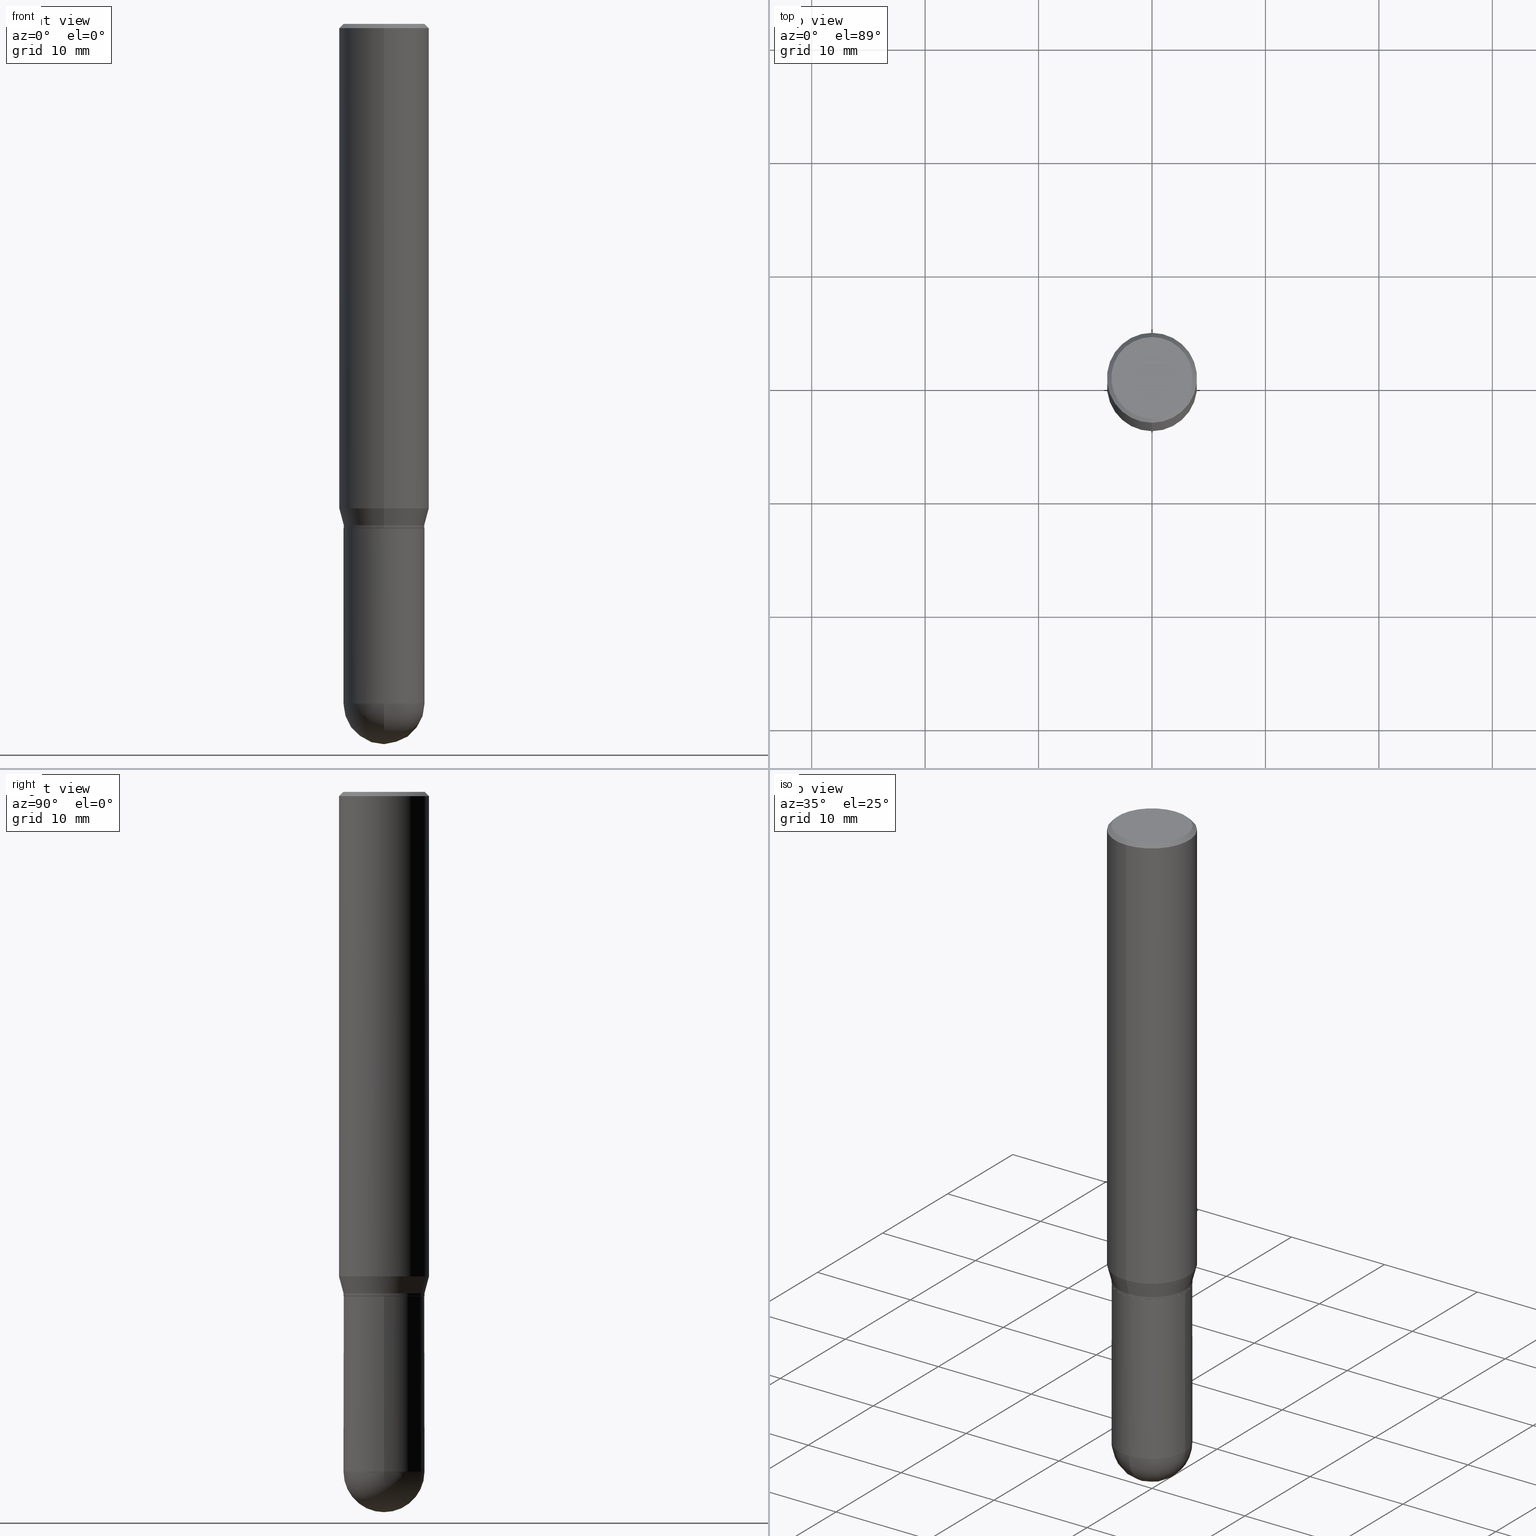
[diagram: canonical four-view strip — front | top / right | iso, engineering-drawing reading convention]
A machine part, canonical four-view strip (front | top / right | iso — engineering-drawing reading convention). The complete STEP part file that produces these views, byte-faithful:
ISO-10303-21;
HEADER;
FILE_DESCRIPTION (( 'STEP AP203' ),
    '1' );
FILE_NAME ('39536.STEP',
    '2024-03-08T12:53:07',
    ( '' ),
    ( '' ),
    'SwSTEP 2.0',
    'SolidWorks 2023',
    '' );
FILE_SCHEMA (( 'CONFIG_CONTROL_DESIGN' ));
ENDSEC;

DATA;
#1 = VERTEX_POINT ( 'NONE', #6 ) ;
#2 = ORIENTED_EDGE ( 'NONE', *, *, #305, .T. ) ;
#3 = DIRECTION ( 'NONE',  ( -2.445560966219159716E-29, 3.491349360429001039E-15, 1.000000000000000000 ) ) ;
#4 = DIRECTION ( 'NONE',  ( -4.937700262164631661E-15, -0.7071067811865571207, 0.7071067811865379138 ) ) ;
#5 = CARTESIAN_POINT ( 'NONE',  ( 4.255276081221338142E-29, -6.074947887146461556E-15, -1.739999999999999991 ) ) ;
#6 = CARTESIAN_POINT ( 'NONE',  ( -1.091087918388437956E-15, -0.1562500000000058842, -1.681593404861546404 ) ) ;
#7 = APPLICATION_PROTOCOL_DEFINITION ( 'international standard', 'config_control_design', 1994, #318 ) ;
#8 = SECURITY_CLASSIFICATION ( '', '', #125 ) ;
#9 = ORIENTED_EDGE ( 'NONE', *, *, #212, .F. ) ;
#10 = EDGE_CURVE ( 'NONE', #25, #315, #130, .T. ) ;
#11 = CYLINDRICAL_SURFACE ( 'NONE', #297, 0.1406000000000000028 ) ;
#12 = DIRECTION ( 'NONE',  ( -2.445468806185136597E-29, 3.491481338843145583E-15, 1.000000000000000000 ) ) ;
#13 = PERSON_AND_ORGANIZATION ( #472, #247 ) ;
#14 = CARTESIAN_POINT ( 'NONE',  ( 7.297477244033334279E-46, -1.041807702225884863E-31, -2.983968645572244653E-17 ) ) ;
#15 = AXIS2_PLACEMENT_3D ( 'NONE', #413, #59, #372 ) ;
#16 = CC_DESIGN_APPROVAL ( #102, ( #442 ) ) ;
#17 = APPROVAL_STATUS ( 'not_yet_approved' ) ;
#18 = DIRECTION ( 'NONE',  ( -2.445468806185136597E-29, 3.491481338843145583E-15, 1.000000000000000000 ) ) ;
#19 = CARTESIAN_POINT ( 'NONE',  ( 0.000000000000000000, 0.000000000000000000, 0.000000000000000000 ) ) ;
#20 = AXIS2_PLACEMENT_3D ( 'NONE', #14, #164, #319 ) ;
#21 = FACE_OUTER_BOUND ( 'NONE', #257, .T. ) ;
#22 = FACE_OUTER_BOUND ( 'NONE', #439, .T. ) ;
#23 = PRODUCT_RELATED_PRODUCT_CATEGORY ( 'detail', '', ( #392 ) ) ;
#24 = CARTESIAN_POINT ( 'NONE',  ( 4.112439191980971805E-29, -5.871030058564987327E-15, -1.681593404861546848 ) ) ;
#25 = VERTEX_POINT ( 'NONE', #314 ) ;
#26 = DIRECTION ( 'NONE',  ( -2.445560966219159716E-29, 3.491349360429001039E-15, 1.000000000000000000 ) ) ;
#27 = PLANE ( 'NONE',  #126 ) ;
#28 = EDGE_CURVE ( 'NONE', #315, #25, #193, .T. ) ;
#29 = DIRECTION ( 'NONE',  ( -6.982962677686265922E-15, -1.000000000000000000, 3.899854380677035588E-15 ) ) ;
#30 = VERTEX_POINT ( 'NONE', #87 ) ;
#31 = CARTESIAN_POINT ( 'NONE',  ( 4.112439191980971805E-29, -5.871030058564987327E-15, -1.681593404861546848 ) ) ;
#32 = DIRECTION ( 'NONE',  ( -2.445468806185136597E-29, 3.491481338843145583E-15, 1.000000000000000000 ) ) ;
#33 = LINE ( 'NONE', #502, #355 ) ;
#34 = DIRECTION ( 'NONE',  ( -2.445560966219159716E-29, 3.491349360429001039E-15, 1.000000000000000000 ) ) ;
#35 = AXIS2_PLACEMENT_3D ( 'NONE', #68, #388, #348 ) ;
#36 = CYLINDRICAL_SURFACE ( 'NONE', #51, 0.1405999999999999195 ) ;
#37 = ADVANCED_FACE ( 'NONE', ( #251 ), #445, .T. ) ;
#38 = ORIENTED_EDGE ( 'NONE', *, *, #385, .F. ) ;
#39 = ORIENTED_EDGE ( 'NONE', *, *, #173, .F. ) ;
#40 = FACE_OUTER_BOUND ( 'NONE', #57, .T. ) ;
#41 = DIRECTION ( 'NONE',  ( -2.445560966219159716E-29, 3.491349360429001039E-15, 1.000000000000000000 ) ) ;
#42 = CARTESIAN_POINT ( 'NONE',  ( 9.818045524827470871E-16, 0.1405999999999918426, -2.359400000000000386 ) ) ;
#43 = DATE_AND_TIME ( #122, #277 ) ;
#44 = CARTESIAN_POINT ( 'NONE',  ( 0.1406000000000000583, -8.155751259403701439E-15, -2.359399999999999942 ) ) ;
#45 = CLOSED_SHELL ( 'NONE', ( #267, #322, #424, #398, #370, #359, #37, #256, #491, #246, #466, #182 ) ) ;
#46 = ADVANCED_FACE ( 'NONE', ( #208 ), #396, .T. ) ;
#47 = CARTESIAN_POINT ( 'NONE',  ( 0.000000000000000000, 0.000000000000000000, 0.000000000000000000 ) ) ;
#48 = PERSON_AND_ORGANIZATION_ROLE ( 'design_supplier' ) ;
#49 = DIRECTION ( 'NONE',  ( -2.445560966219159996E-29, 3.491349360429000645E-15, 1.000000000000000000 ) ) ;
#50 = APPROVAL_STATUS ( 'not_yet_approved' ) ;
#51 = AXIS2_PLACEMENT_3D ( 'NONE', #149, #3, #469 ) ;
#52 = APPROVAL_PERSON_ORGANIZATION ( #443, #339, #200 ) ;
#53 = ADVANCED_FACE ( 'NONE', ( #286 ), #11, .T. ) ;
#54 = EDGE_CURVE ( 'NONE', #427, #507, #324, .T. ) ;
#55 = AXIS2_PLACEMENT_3D ( 'NONE', #281, #121, #241 ) ;
#56 = CIRCLE ( 'NONE', #174, 0.1562500000000000000 ) ;
#57 = EDGE_LOOP ( 'NONE', ( #473, #356 ) ) ;
#58 = VERTEX_POINT ( 'NONE', #451 ) ;
#59 = DIRECTION ( 'NONE',  ( 2.445560966219159716E-29, -3.491349360429001039E-15, -1.000000000000000000 ) ) ;
#60 = VERTEX_POINT ( 'NONE', #284 ) ;
#61 = CIRCLE ( 'NONE', #452, 0.1562500000000000000 ) ;
#62 = ORIENTED_EDGE ( 'NONE', *, *, #88, .F. ) ;
#63 = ORIENTED_EDGE ( 'NONE', *, *, #285, .F. ) ;
#64 =( NAMED_UNIT ( * ) PLANE_ANGLE_UNIT ( ) SI_UNIT ( $, .RADIAN. ) );
#65 = CARTESIAN_POINT ( 'NONE',  ( 4.279570410823989044E-29, -6.110092342975505460E-15, -1.750000000000000222 ) ) ;
#66 = ORIENTED_EDGE ( 'NONE', *, *, #127, .T. ) ;
#67 = CARTESIAN_POINT ( 'NONE',  ( -0.1406000000000000028, 9.990230864787008809E-16, -6.916022736898399140E-30 ) ) ;
#68 = CARTESIAN_POINT ( 'NONE',  ( 5.769839101313211634E-29, -8.237801070866517629E-15, -2.359399999999999942 ) ) ;
#69 = VERTEX_POINT ( 'NONE', #249 ) ;
#70 = LINE ( 'NONE', #67, #464 ) ;
#71 = CYLINDRICAL_SURFACE ( 'NONE', #258, 0.1405999999999999195 ) ;
#72 = DIRECTION ( 'NONE',  ( -1.000000000000000000, 6.982962677686265922E-15, -4.883557194083112340E-29 ) ) ;
#73 = ORIENTED_EDGE ( 'NONE', *, *, #328, .T. ) ;
#74 = AXIS2_PLACEMENT_3D ( 'NONE', #217, #367, #223 ) ;
#75 = DIRECTION ( 'NONE',  ( -2.445468806185136597E-29, 3.491481338843145583E-15, 1.000000000000000000 ) ) ;
#76 = AXIS2_PLACEMENT_3D ( 'NONE', #353, #171, #108 ) ;
#77 = CARTESIAN_POINT ( 'NONE',  ( 3.668341449328747176E-31, -5.237024040643512307E-17, -0.01500000000000003067 ) ) ;
#78 = DIRECTION ( 'NONE',  ( -1.000000000000000000, 6.982962677686265922E-15, -4.876176775795935793E-29 ) ) ;
#79 = ORIENTED_EDGE ( 'NONE', *, *, #448, .F. ) ;
#80 = DIRECTION ( 'NONE',  ( -2.445560966219159716E-29, 3.491349360429001039E-15, 1.000000000000000000 ) ) ;
#81 = FACE_OUTER_BOUND ( 'NONE', #136, .T. ) ;
#82 = CARTESIAN_POINT ( 'NONE',  ( 4.278508910400420923E-29, -6.108115706070538213E-15, -1.749500000000000277 ) ) ;
#83 = COORDINATED_UNIVERSAL_TIME_OFFSET ( 5, 0, .BEHIND. ) ;
#84 = EDGE_CURVE ( 'NONE', #30, #427, #495, .T. ) ;
#85 = APPROVAL_STATUS ( 'not_yet_approved' ) ;
#86 = CARTESIAN_POINT ( 'NONE',  ( 4.255276081221338142E-29, -6.074947887146461556E-15, -1.739999999999999991 ) ) ;
#87 = CARTESIAN_POINT ( 'NONE',  ( -9.818045524826459157E-16, -0.1406000000000059980, -1.739999999999999547 ) ) ;
#88 = EDGE_CURVE ( 'NONE', #423, #222, #377, .T. ) ;
#89 = DIRECTION ( 'NONE',  ( -2.445560966219159716E-29, 3.491349360429001039E-15, 1.000000000000000000 ) ) ;
#90 = AXIS2_PLACEMENT_3D ( 'NONE', #434, #75, #312 ) ;
#91 = CC_DESIGN_PERSON_AND_ORGANIZATION_ASSIGNMENT ( #168, #394, ( #134 ) ) ;
#92 = VECTOR ( 'NONE', #346, 39.37007874015748143 ) ;
#93 = EDGE_CURVE ( 'NONE', #58, #315, #255, .T. ) ;
#94 = DIMENSIONAL_EXPONENTS ( 1.000000000000000000, 0.000000000000000000, 0.000000000000000000, 0.000000000000000000, 0.000000000000000000, 0.000000000000000000, 0.000000000000000000 ) ;
#95 = EDGE_LOOP ( 'NONE', ( #345, #334, #500, #184 ) ) ;
#96 = DIRECTION ( 'NONE',  ( -6.982962677686265922E-15, -1.000000000000000000, 3.491349360429000645E-15 ) ) ;
#97 = CIRCLE ( 'NONE', #432, 0.1406000000000000305 ) ;
#98 = VERTEX_POINT ( 'NONE', #280 ) ;
#99 = DIRECTION ( 'NONE',  ( -6.982962677686265922E-15, -1.000000000000000000, 3.899854380677035588E-15 ) ) ;
#100 = ORIENTED_EDGE ( 'NONE', *, *, #374, .F. ) ;
#101 =( CONVERSION_BASED_UNIT ( 'INCH', #308 ) LENGTH_UNIT ( ) NAMED_UNIT ( #94 ) );
#102 = APPROVAL ( #85, 'UNSPECIFIED' ) ;
#103 = DIRECTION ( 'NONE',  ( 1.000000000000000000, -6.982962677686265922E-15, 4.883557194083112340E-29 ) ) ;
#104 = VECTOR ( 'NONE', #292, 39.37007874015748143 ) ;
#105 =( GEOMETRIC_REPRESENTATION_CONTEXT ( 3 ) GLOBAL_UNCERTAINTY_ASSIGNED_CONTEXT ( ( #296 ) ) GLOBAL_UNIT_ASSIGNED_CONTEXT ( ( #101, #64, #147 ) ) REPRESENTATION_CONTEXT ( 'NONE', 'WORKASPACE' ) );
#106 = ORIENTED_EDGE ( 'NONE', *, *, #411, .F. ) ;
#107 = LINE ( 'NONE', #150, #92 ) ;
#108 = DIRECTION ( 'NONE',  ( -7.105427357601001859E-15, -1.000000000000000000, 0.000000000000000000 ) ) ;
#109 = DIRECTION ( 'NONE',  ( -2.445560966219159716E-29, 3.491349360429001039E-15, 1.000000000000000000 ) ) ;
#110 = DIRECTION ( 'NONE',  ( -6.982962677686266711E-15, -1.000000000000000000, 3.885985766236507752E-15 ) ) ;
#111 = DIRECTION ( 'NONE',  ( -2.445560966219159716E-29, 3.491349360429001039E-15, 1.000000000000000000 ) ) ;
#112 = MECHANICAL_CONTEXT ( 'NONE', #188, 'mechanical' ) ;
#113 = CC_DESIGN_PERSON_AND_ORGANIZATION_ASSIGNMENT ( #244, #484, ( #442 ) ) ;
#114 = DIRECTION ( 'NONE',  ( -2.445560966219159716E-29, 3.491349360429001039E-15, 1.000000000000000000 ) ) ;
#115 = EDGE_LOOP ( 'NONE', ( #100, #302, #73, #237 ) ) ;
#116 = CIRCLE ( 'NONE', #384, 0.1401000000000000023 ) ;
#117 = ORIENTED_EDGE ( 'NONE', *, *, #414, .F. ) ;
#118 = AXIS2_PLACEMENT_3D ( 'NONE', #471, #354, #110 ) ;
#119 = DIRECTION ( 'NONE',  ( -2.445560966219159716E-29, 3.491349360429001039E-15, 1.000000000000000000 ) ) ;
#120 = APPROVAL_ROLE ( '' ) ;
#121 = DIRECTION ( 'NONE',  ( -2.445560966219159716E-29, 3.491349360429001039E-15, 1.000000000000000000 ) ) ;
#122 = CALENDAR_DATE ( 2024, 8, 3 ) ;
#123 = ORIENTED_EDGE ( 'NONE', *, *, #54, .F. ) ;
#124 = DIRECTION ( 'NONE',  ( 1.000000000000000000, -6.982962677686268288E-15, 4.876176775795936353E-29 ) ) ;
#125 = SECURITY_CLASSIFICATION_LEVEL ( 'unclassified' ) ;
#126 = AXIS2_PLACEMENT_3D ( 'NONE', #233, #238, #195 ) ;
#127 = EDGE_CURVE ( 'NONE', #197, #58, #116, .T. ) ;
#128 = PERSON_AND_ORGANIZATION_ROLE ( 'design_owner' ) ;
#129 = ORIENTED_EDGE ( 'NONE', *, *, #422, .T. ) ;
#130 = CIRCLE ( 'NONE', #362, 0.1405999999999999195 ) ;
#131 = PLANE ( 'NONE',  #485 ) ;
#132 = ORIENTED_EDGE ( 'NONE', *, *, #10, .F. ) ;
#133 = CIRCLE ( 'NONE', #226, 0.1562500000000000000 ) ;
#134 = PRODUCT_DEFINITION_FORMATION_WITH_SPECIFIED_SOURCE ( 'ANY', '', #392, .NOT_KNOWN. ) ;
#135 = DIRECTION ( 'NONE',  ( -2.445560966219159716E-29, 3.491349360429001039E-15, 1.000000000000000000 ) ) ;
#136 = EDGE_LOOP ( 'NONE', ( #227, #337, #336, #39 ) ) ;
#137 = CC_DESIGN_PERSON_AND_ORGANIZATION_ASSIGNMENT ( #13, #48, ( #134 ) ) ;
#138 = CARTESIAN_POINT ( 'NONE',  ( 4.279731690883529924E-29, -6.109861380750751819E-15, -1.750000000000000222 ) ) ;
#139 = ORIENTED_EDGE ( 'NONE', *, *, #316, .F. ) ;
#140 = CARTESIAN_POINT ( 'NONE',  ( 3.668341449328747176E-31, -5.237024040643512307E-17, -0.01500000000000003067 ) ) ;
#141 = ADVANCED_FACE ( 'NONE', ( #436 ), #266, .F. ) ;
#142 = ORIENTED_EDGE ( 'NONE', *, *, #385, .T. ) ;
#143 = FACE_OUTER_BOUND ( 'NONE', #418, .T. ) ;
#144 = CIRCLE ( 'NONE', #368, 0.1405999999999999195 ) ;
#145 = AXIS2_PLACEMENT_3D ( 'NONE', #383, #190, #270 ) ;
#146 = ORIENTED_EDGE ( 'NONE', *, *, #333, .F. ) ;
#147 =( NAMED_UNIT ( * ) SI_UNIT ( $, .STERADIAN. ) SOLID_ANGLE_UNIT ( ) );
#148 = VERTEX_POINT ( 'NONE', #205 ) ;
#149 = CARTESIAN_POINT ( 'NONE',  ( 0.000000000000000000, 0.000000000000000000, 0.000000000000000000 ) ) ;
#150 = CARTESIAN_POINT ( 'NONE',  ( 9.990230864787002893E-16, 0.1405999999999999195, -4.908837200763172852E-16 ) ) ;
#151 =( LENGTH_UNIT ( ) NAMED_UNIT ( * ) SI_UNIT ( $, .METRE. ) );
#152 = ADVANCED_BREP_SHAPE_REPRESENTATION ( '39536', ( #476, #299, #145 ), #105 ) ;
#153 = DIRECTION ( 'NONE',  ( -6.982962677686266711E-15, -1.000000000000000000, 3.491349360429001039E-15 ) ) ;
#154 = VECTOR ( 'NONE', #426, 39.37007874015748143 ) ;
#155 = CALENDAR_DATE ( 2024, 8, 3 ) ;
#156 = FACE_OUTER_BOUND ( 'NONE', #206, .T. ) ;
#157 = LINE ( 'NONE', #493, #508 ) ;
#158 = DIRECTION ( 'NONE',  ( -2.445560966219159716E-29, 3.491349360429001039E-15, 1.000000000000000000 ) ) ;
#159 = APPROVAL_DATE_TIME ( #288, #339 ) ;
#160 = DIRECTION ( 'NONE',  ( -6.982962677686265133E-15, -1.000000000000000000, 3.491349360429001039E-15 ) ) ;
#161 = DIRECTION ( 'NONE',  ( -2.445560966219159716E-29, 3.491349360429001039E-15, 1.000000000000000000 ) ) ;
#162 = DIRECTION ( 'NONE',  ( -2.445468806185136877E-29, 3.491481338843145188E-15, 1.000000000000000000 ) ) ;
#163 = DATE_AND_TIME ( #155, #490 ) ;
#164 = DIRECTION ( 'NONE',  ( -2.445560966219159716E-29, 3.491349360429001039E-15, 1.000000000000000000 ) ) ;
#165 = ORIENTED_EDGE ( 'NONE', *, *, #93, .T. ) ;
#166 = AXIS2_PLACEMENT_3D ( 'NONE', #326, #250, #160 ) ;
#167 = EDGE_CURVE ( 'NONE', #404, #187, #463, .T. ) ;
#168 = PERSON_AND_ORGANIZATION ( #472, #247 ) ;
#169 = DIRECTION ( 'NONE',  ( 1.000000000000000000, -6.982962677686268288E-15, 4.876176775795936353E-29 ) ) ;
#170 = CYLINDRICAL_SURFACE ( 'NONE', #166, 0.1562500000000000000 ) ;
#171 = DIRECTION ( 'NONE',  ( -1.000000000000000000, 7.105427357601001070E-15, -4.926315508542082329E-29 ) ) ;
#172 = CARTESIAN_POINT ( 'NONE',  ( 9.990230864787428877E-16, 0.1405999999999938410, -1.740000000000000657 ) ) ;
#173 = EDGE_CURVE ( 'NONE', #427, #30, #144, .T. ) ;
#174 = AXIS2_PLACEMENT_3D ( 'NONE', #512, #350, #231 ) ;
#175 = ORIENTED_EDGE ( 'NONE', *, *, #422, .F. ) ;
#176 = CC_DESIGN_DATE_AND_TIME_ASSIGNMENT ( #163, #242, ( #442 ) ) ;
#177 = EDGE_CURVE ( 'NONE', #222, #311, #391, .T. ) ;
#178 = ORIENTED_EDGE ( 'NONE', *, *, #305, .F. ) ;
#179 = CARTESIAN_POINT ( 'NONE',  ( 4.279731690883529924E-29, -6.109861380750751819E-15, -1.750000000000000222 ) ) ;
#180 = AXIS2_PLACEMENT_3D ( 'NONE', #65, #229, #340 ) ;
#181 = VECTOR ( 'NONE', #300, 39.37007874015748143 ) ;
#182 = ADVANCED_FACE ( 'NONE', ( #81 ), #71, .T. ) ;
#183 = ORIENTED_EDGE ( 'NONE', *, *, #28, .F. ) ;
#184 = ORIENTED_EDGE ( 'NONE', *, *, #328, .F. ) ;
#185 = ORIENTED_EDGE ( 'NONE', *, *, #454, .T. ) ;
#186 = LINE ( 'NONE', #378, #181 ) ;
#187 = VERTEX_POINT ( 'NONE', #44 ) ;
#188 = APPLICATION_CONTEXT ( 'configuration controlled 3d designs of mechanical parts and assemblies' ) ;
#189 = ORIENTED_EDGE ( 'NONE', *, *, #173, .T. ) ;
#190 = DIRECTION ( 'NONE',  ( 0.000000000000000000, 0.000000000000000000, 1.000000000000000000 ) ) ;
#191 = CARTESIAN_POINT ( 'NONE',  ( 5.769839101313211634E-29, -8.237801070866517629E-15, -2.359399999999999942 ) ) ;
#192 = DIRECTION ( 'NONE',  ( -6.982962677686265922E-15, -1.000000000000000000, 3.899854380677035588E-15 ) ) ;
#193 = CIRCLE ( 'NONE', #55, 0.1405999999999999195 ) ;
#194 = CIRCLE ( 'NONE', #298, 0.1412499999999999867 ) ;
#195 = DIRECTION ( 'NONE',  ( 6.982962677686265922E-15, 1.000000000000000000, -3.491349360429000645E-15 ) ) ;
#196 = ORIENTED_EDGE ( 'NONE', *, *, #408, .F. ) ;
#197 = VERTEX_POINT ( 'NONE', #201 ) ;
#198 = LINE ( 'NONE', #307, #379 ) ;
#199 = CARTESIAN_POINT ( 'NONE',  ( 1.091087918388479371E-15, 0.1562499999999999445, -0.01500000000000057711 ) ) ;
#200 = APPROVAL_ROLE ( '' ) ;
#201 = CARTESIAN_POINT ( 'NONE',  ( -9.783130711438031058E-16, -0.1401000000000061085, -1.749999999999999556 ) ) ;
#202 = CARTESIAN_POINT ( 'NONE',  ( -9.990230864786434913E-16, -0.1406000000000083017, -2.359399999999999498 ) ) ;
#203 = AXIS2_PLACEMENT_3D ( 'NONE', #465, #34, #192 ) ;
#204 = ADVANCED_FACE ( 'NONE', ( #156 ), #232, .T. ) ;
#205 = CARTESIAN_POINT ( 'NONE',  ( 6.107660196449910766E-29, -8.737312614105869844E-15, -2.500000000000000000 ) ) ;
#206 = EDGE_LOOP ( 'NONE', ( #196, #504, #428, #468 ) ) ;
#207 = PERSON_AND_ORGANIZATION ( #472, #247 ) ;
#208 = FACE_OUTER_BOUND ( 'NONE', #329, .T. ) ;
#209 = CARTESIAN_POINT ( 'NONE',  ( 9.990230864787432822E-16, 0.1405999999999938410, -1.749500000000000721 ) ) ;
#210 = CARTESIAN_POINT ( 'NONE',  ( -1.091087918388478976E-15, -0.1562500000000000000, 5.455233375670314124E-16 ) ) ;
#211 = DATE_AND_TIME ( #358, #294 ) ;
#212 = EDGE_CURVE ( 'NONE', #268, #69, #276, .T. ) ;
#213 = PERSON_AND_ORGANIZATION ( #472, #247 ) ;
#214 = APPROVAL_PERSON_ORGANIZATION ( #323, #261, #120 ) ;
#215 = FACE_OUTER_BOUND ( 'NONE', #95, .T. ) ;
#216 = ORIENTED_EDGE ( 'NONE', *, *, #167, .T. ) ;
#217 = CARTESIAN_POINT ( 'NONE',  ( 5.757815463287349061E-29, -8.255019604862529009E-15, -2.359399999999999942 ) ) ;
#218 = EDGE_LOOP ( 'NONE', ( #461, #488, #63, #263 ) ) ;
#219 = CC_DESIGN_PERSON_AND_ORGANIZATION_ASSIGNMENT ( #213, #128, ( #392 ) ) ;
#220 = CONICAL_SURFACE ( 'NONE', #15, 0.1562500000000000000, 0.7853981633974485010 ) ;
#221 = CIRCLE ( 'NONE', #369, 0.1401000000000000023 ) ;
#222 = VERTEX_POINT ( 'NONE', #470 ) ;
#223 = DIRECTION ( 'NONE',  ( 6.982962677686265922E-15, 1.000000000000000000, -3.885985766236502230E-15 ) ) ;
#224 = DIRECTION ( 'NONE',  ( -2.445560966219159996E-29, 3.491349360429000645E-15, 1.000000000000000000 ) ) ;
#225 = DIRECTION ( 'NONE',  ( -2.445468806185136597E-29, 3.491481338843145583E-15, 1.000000000000000000 ) ) ;
#226 = AXIS2_PLACEMENT_3D ( 'NONE', #31, #111, #269 ) ;
#227 = ORIENTED_EDGE ( 'NONE', *, *, #460, .F. ) ;
#228 = DIRECTION ( 'NONE',  ( 6.982962677686265133E-15, 1.000000000000000000, -3.496765431890256920E-15 ) ) ;
#229 = DIRECTION ( 'NONE',  ( -2.445468806185136597E-29, 3.491481338843145583E-15, 1.000000000000000000 ) ) ;
#230 = ORIENTED_EDGE ( 'NONE', *, *, #505, .F. ) ;
#231 = DIRECTION ( 'NONE',  ( -6.982962677686265133E-15, -1.000000000000000000, 3.496765431890256920E-15 ) ) ;
#232 = SPHERICAL_SURFACE ( 'NONE', #410, 0.1406000000000000860 ) ;
#233 = CARTESIAN_POINT ( 'NONE',  ( 9.863434782231850151E-16, 0.1412499999999999867, -5.080729403884576451E-16 ) ) ;
#234 = DIRECTION ( 'NONE',  ( 6.982962677686265922E-15, 1.000000000000000000, -3.885985766236502230E-15 ) ) ;
#235 = AXIS2_PLACEMENT_3D ( 'NONE', #191, #343, #506 ) ;
#236 = AXIS2_PLACEMENT_3D ( 'NONE', #138, #80, #29 ) ;
#237 = ORIENTED_EDGE ( 'NONE', *, *, #454, .F. ) ;
#238 = DIRECTION ( 'NONE',  ( 2.445560966219159716E-29, -3.491349360429000645E-15, -1.000000000000000000 ) ) ;
#239 = ORIENTED_EDGE ( 'NONE', *, *, #177, .T. ) ;
#240 = ADVANCED_FACE ( 'NONE', ( #275 ), #405, .T. ) ;
#241 = DIRECTION ( 'NONE',  ( -6.982962677686265133E-15, -1.000000000000000000, 3.885985766236507752E-15 ) ) ;
#242 = DATE_TIME_ROLE ( 'creation_date' ) ;
#243 = CARTESIAN_POINT ( 'NONE',  ( 4.279731690883529924E-29, -6.109861380750751819E-15, -1.750000000000000222 ) ) ;
#244 = PERSON_AND_ORGANIZATION ( #472, #247 ) ;
#245 = CONICAL_SURFACE ( 'NONE', #203, 0.1401000000000000023, 0.7853981633974653764 ) ;
#246 = ADVANCED_FACE ( 'NONE', ( #21 ), #131, .F. ) ;
#247 = ORGANIZATION ( 'UNSPECIFIED', 'UNSPECIFIED', '' ) ;
#248 = CALENDAR_DATE ( 2024, 8, 3 ) ;
#249 = CARTESIAN_POINT ( 'NONE',  ( -0.1406000000000000583, -6.174923620442310269E-15, -2.359399999999999942 ) ) ;
#250 = DIRECTION ( 'NONE',  ( -2.445560966219159716E-29, 3.491349360429001039E-15, 1.000000000000000000 ) ) ;
#251 = FACE_OUTER_BOUND ( 'NONE', #115, .T. ) ;
#252 = CARTESIAN_POINT ( 'NONE',  ( 0.1406000000000000028, -9.818045524826893030E-16, 6.855904546769086274E-30 ) ) ;
#253 = EDGE_LOOP ( 'NONE', ( #494, #272, #306, #146 ) ) ;
#254 = VECTOR ( 'NONE', #402, 39.37007874015748143 ) ;
#255 = LINE ( 'NONE', #304, #301 ) ;
#256 = ADVANCED_FACE ( 'NONE', ( #325 ), #220, .T. ) ;
#257 = EDGE_LOOP ( 'NONE', ( #375, #38 ) ) ;
#258 = AXIS2_PLACEMENT_3D ( 'NONE', #386, #347, #153 ) ;
#259 = CIRCLE ( 'NONE', #310, 0.1562500000000000000 ) ;
#260 = ORIENTED_EDGE ( 'NONE', *, *, #320, .T. ) ;
#261 = APPROVAL ( #17, 'UNSPECIFIED' ) ;
#262 = ORIENTED_EDGE ( 'NONE', *, *, #487, .T. ) ;
#263 = ORIENTED_EDGE ( 'NONE', *, *, #487, .F. ) ;
#264 = DIRECTION ( 'NONE',  ( 6.982962677686266711E-15, 1.000000000000000000, 0.000000000000000000 ) ) ;
#265 = EDGE_CURVE ( 'NONE', #507, #1, #61, .T. ) ;
#266 = PLANE ( 'NONE',  #309 ) ;
#267 = ADVANCED_FACE ( 'NONE', ( #338 ), #36, .T. ) ;
#268 = VERTEX_POINT ( 'NONE', #42 ) ;
#269 = DIRECTION ( 'NONE',  ( -6.982962677686265133E-15, -1.000000000000000000, 3.496765431890256920E-15 ) ) ;
#270 = DIRECTION ( 'NONE',  ( 1.000000000000000000, 0.000000000000000000, 0.000000000000000000 ) ) ;
#271 = CARTESIAN_POINT ( 'NONE',  ( 5.757815463287349061E-29, -8.255019604862529009E-15, -2.359399999999999942 ) ) ;
#272 = ORIENTED_EDGE ( 'NONE', *, *, #460, .T. ) ;
#273 = FACE_OUTER_BOUND ( 'NONE', #459, .T. ) ;
#274 = EDGE_CURVE ( 'NONE', #187, #268, #287, .T. ) ;
#275 = FACE_OUTER_BOUND ( 'NONE', #498, .T. ) ;
#276 = CIRCLE ( 'NONE', #35, 0.1406000000000000305 ) ;
#277 = LOCAL_TIME ( 7, 53, 7.000000000000000000, #361 ) ;
#278 = ORIENTED_EDGE ( 'NONE', *, *, #212, .T. ) ;
#279 = CARTESIAN_POINT ( 'NONE',  ( 1.110223024625197561E-15, 0.1562499999999941436, -1.681593404861547514 ) ) ;
#280 = CARTESIAN_POINT ( 'NONE',  ( -1.091087918388478779E-15, -0.1562500000000000833, -0.01499999999999948423 ) ) ;
#281 = CARTESIAN_POINT ( 'NONE',  ( 4.278508910400420923E-29, -6.108115706070538213E-15, -1.749500000000000277 ) ) ;
#282 = PERSON_AND_ORGANIZATION_ROLE ( 'classification_officer' ) ;
#283 = DIRECTION ( 'NONE',  ( -6.982962677686265922E-15, -1.000000000000000000, 3.899854380677035588E-15 ) ) ;
#284 = CARTESIAN_POINT ( 'NONE',  ( -0.1406000000000000028, -6.174923620442310269E-15, -1.750000000000000222 ) ) ;
#285 = EDGE_CURVE ( 'NONE', #1, #507, #133, .T. ) ;
#286 = FACE_OUTER_BOUND ( 'NONE', #399, .T. ) ;
#287 = CIRCLE ( 'NONE', #90, 0.1406000000000000305 ) ;
#288 = DATE_AND_TIME ( #248, #332 ) ;
#289 = LINE ( 'NONE', #210, #293 ) ;
#290 = LINE ( 'NONE', #449, #254 ) ;
#291 = APPROVAL_DATE_TIME ( #211, #102 ) ;
#292 = DIRECTION ( 'NONE',  ( 1.839019923739597160E-15, 0.2588190451025245142, 0.9659258262890673130 ) ) ;
#293 = VECTOR ( 'NONE', #49, 39.37007874015748143 ) ;
#294 = LOCAL_TIME ( 7, 53, 7.000000000000000000, #365 ) ;
#295 = CARTESIAN_POINT ( 'NONE',  ( 4.279731690883529924E-29, -6.109861380750751819E-15, -1.750000000000000222 ) ) ;
#296 = UNCERTAINTY_MEASURE_WITH_UNIT (LENGTH_MEASURE( 1.000000000000000082E-05 ), #101, 'distance_accuracy_value', 'NONE');
#297 = AXIS2_PLACEMENT_3D ( 'NONE', #19, #18, #169 ) ;
#298 = AXIS2_PLACEMENT_3D ( 'NONE', #456, #119, #438 ) ;
#299 = MANIFOLD_SOLID_BREP ( 'Body-Move/Copy2[2]', #45 ) ;
#300 = DIRECTION ( 'NONE',  ( -1.807323732225326984E-15, -0.2588190451025177419, 0.9659258262890690894 ) ) ;
#301 = VECTOR ( 'NONE', #474, 39.37007874015748143 ) ;
#302 = ORIENTED_EDGE ( 'NONE', *, *, #265, .T. ) ;
#303 = CC_DESIGN_APPROVAL ( #261, ( #134 ) ) ;
#304 = CARTESIAN_POINT ( 'NONE',  ( 9.954703727999429753E-16, 0.1400999999999938961, -1.750000000000000666 ) ) ;
#305 = EDGE_CURVE ( 'NONE', #187, #349, #363, .T. ) ;
#306 = ORIENTED_EDGE ( 'NONE', *, *, #84, .F. ) ;
#307 = CARTESIAN_POINT ( 'NONE',  ( -9.783130711438031058E-16, -0.1401000000000061085, -1.749999999999999556 ) ) ;
#308 = LENGTH_MEASURE_WITH_UNIT ( LENGTH_MEASURE( 0.02539999999999999897 ), #151 );
#309 = AXIS2_PLACEMENT_3D ( 'NONE', #389, #441, #78 ) ;
#310 = AXIS2_PLACEMENT_3D ( 'NONE', #77, #114, #421 ) ;
#311 = VERTEX_POINT ( 'NONE', #397 ) ;
#312 = DIRECTION ( 'NONE',  ( 1.000000000000000000, -6.982962677686270655E-15, 0.000000000000000000 ) ) ;
#313 = APPROVAL_DATE_TIME ( #482, #261 ) ;
#314 = CARTESIAN_POINT ( 'NONE',  ( -9.818045524826451268E-16, -0.1406000000000059702, -1.749499999999999833 ) ) ;
#315 = VERTEX_POINT ( 'NONE', #209 ) ;
#316 = EDGE_CURVE ( 'NONE', #148, #268, #393, .T. ) ;
#317 = DIRECTION ( 'NONE',  ( -6.982962677686265133E-15, -1.000000000000000000, 3.491349360429001039E-15 ) ) ;
#318 = APPLICATION_CONTEXT ( 'configuration controlled 3d designs of mechanical parts and assemblies' ) ;
#319 = DIRECTION ( 'NONE',  ( -6.982962677686265922E-15, -1.000000000000000000, 3.491349360429000645E-15 ) ) ;
#320 = EDGE_CURVE ( 'NONE', #60, #349, #401, .T. ) ;
#321 = AXIS2_PLACEMENT_3D ( 'NONE', #140, #342, #228 ) ;
#322 = ADVANCED_FACE ( 'NONE', ( #143 ), #245, .T. ) ;
#323 = PERSON_AND_ORGANIZATION ( #472, #247 ) ;
#324 = LINE ( 'NONE', #172, #104 ) ;
#325 = FACE_OUTER_BOUND ( 'NONE', #480, .T. ) ;
#326 = CARTESIAN_POINT ( 'NONE',  ( 0.000000000000000000, 0.000000000000000000, 0.000000000000000000 ) ) ;
#327 = AXIS2_PLACEMENT_3D ( 'NONE', #483, #12, #124 ) ;
#328 = EDGE_CURVE ( 'NONE', #1, #98, #289, .T. ) ;
#329 = EDGE_LOOP ( 'NONE', ( #79, #129, #216, #2, #382 ) ) ;
#330 = EDGE_LOOP ( 'NONE', ( #62, #481, #477, #503 ) ) ;
#331 = VECTOR ( 'NONE', #162, 39.37007874015748143 ) ;
#332 = LOCAL_TIME ( 7, 53, 7.000000000000000000, #478 ) ;
#333 = EDGE_CURVE ( 'NONE', #25, #30, #290, .T. ) ;
#334 = ORIENTED_EDGE ( 'NONE', *, *, #374, .T. ) ;
#335 = DIRECTION ( 'NONE',  ( 1.000000000000000000, -6.982962677686270655E-15, 0.000000000000000000 ) ) ;
#336 = ORIENTED_EDGE ( 'NONE', *, *, #333, .T. ) ;
#337 = ORIENTED_EDGE ( 'NONE', *, *, #28, .T. ) ;
#338 = FACE_OUTER_BOUND ( 'NONE', #253, .T. ) ;
#339 = APPROVAL ( #50, 'UNSPECIFIED' ) ;
#340 = DIRECTION ( 'NONE',  ( 1.000000000000000000, -6.982962677686265133E-15, 0.000000000000000000 ) ) ;
#341 = PRODUCT_DEFINITION_SHAPE ( 'NONE', 'NONE',  #442 ) ;
#342 = DIRECTION ( 'NONE',  ( 2.445560966219159716E-29, -3.491349360429001039E-15, -1.000000000000000000 ) ) ;
#343 = DIRECTION ( 'NONE',  ( -2.445468806185136597E-29, 3.491481338843145583E-15, 1.000000000000000000 ) ) ;
#344 = AXIS2_PLACEMENT_3D ( 'NONE', #47, #161, #317 ) ;
#345 = ORIENTED_EDGE ( 'NONE', *, *, #285, .T. ) ;
#346 = DIRECTION ( 'NONE',  ( -2.445560966219159996E-29, 3.491349360429000645E-15, 1.000000000000000000 ) ) ;
#347 = DIRECTION ( 'NONE',  ( -2.445560966219159716E-29, 3.491349360429001039E-15, 1.000000000000000000 ) ) ;
#348 = DIRECTION ( 'NONE',  ( 1.000000000000000000, -6.982962677686270655E-15, 0.000000000000000000 ) ) ;
#349 = VERTEX_POINT ( 'NONE', #366 ) ;
#350 = DIRECTION ( 'NONE',  ( -2.445560966219159716E-29, 3.491349360429001039E-15, 1.000000000000000000 ) ) ;
#351 = FACE_OUTER_BOUND ( 'NONE', #218, .T. ) ;
#352 = DATE_TIME_ROLE ( 'classification_date' ) ;
#353 = CARTESIAN_POINT ( 'NONE',  ( 5.757815463287349061E-29, -8.255019604862529009E-15, -2.359399999999999942 ) ) ;
#354 = DIRECTION ( 'NONE',  ( -2.445560966219159716E-29, 3.491349360429001039E-15, 1.000000000000000000 ) ) ;
#355 = VECTOR ( 'NONE', #381, 39.37007874015748143 ) ;
#356 = ORIENTED_EDGE ( 'NONE', *, *, #88, .T. ) ;
#357 = ORIENTED_EDGE ( 'NONE', *, *, #505, .T. ) ;
#358 = CALENDAR_DATE ( 2024, 8, 3 ) ;
#359 = ADVANCED_FACE ( 'NONE', ( #22 ), #420, .T. ) ;
#360 = CARTESIAN_POINT ( 'NONE',  ( 5.757815463287349061E-29, -8.255019604862529009E-15, -2.359399999999999942 ) ) ;
#361 = COORDINATED_UNIVERSAL_TIME_OFFSET ( 5, 0, .BEHIND. ) ;
#362 = AXIS2_PLACEMENT_3D ( 'NONE', #82, #158, #433 ) ;
#363 = LINE ( 'NONE', #252, #331 ) ;
#364 = CONICAL_SURFACE ( 'NONE', #236, 0.1401000000000000023, 0.7853981633974653764 ) ;
#365 = COORDINATED_UNIVERSAL_TIME_OFFSET ( 5, 0, .BEHIND. ) ;
#366 = CARTESIAN_POINT ( 'NONE',  ( 0.1406000000000000028, -7.091896895458194566E-15, -1.750000000000000222 ) ) ;
#367 = DIRECTION ( 'NONE',  ( -1.000000000000000000, 6.982962677686265922E-15, -4.883557194083112340E-29 ) ) ;
#368 = AXIS2_PLACEMENT_3D ( 'NONE', #5, #41, #479 ) ;
#369 = AXIS2_PLACEMENT_3D ( 'NONE', #179, #135, #99 ) ;
#370 = ADVANCED_FACE ( 'NONE', ( #351 ), #486, .T. ) ;
#371 = ORIENTED_EDGE ( 'NONE', *, *, #93, .F. ) ;
#372 = DIRECTION ( 'NONE',  ( 6.982962677686265133E-15, 1.000000000000000000, -3.496765431890256920E-15 ) ) ;
#373 = CARTESIAN_POINT ( 'NONE',  ( 4.279570410823989044E-29, -6.110092342975505460E-15, -1.750000000000000222 ) ) ;
#374 = EDGE_CURVE ( 'NONE', #507, #311, #157, .T. ) ;
#375 = ORIENTED_EDGE ( 'NONE', *, *, #127, .F. ) ;
#376 = ORIENTED_EDGE ( 'NONE', *, *, #437, .F. ) ;
#377 = CIRCLE ( 'NONE', #20, 0.1412499999999999867 ) ;
#378 = CARTESIAN_POINT ( 'NONE',  ( -9.818045524826459157E-16, -0.1406000000000059980, -1.739999999999999547 ) ) ;
#379 = VECTOR ( 'NONE', #4, 39.37007874015748143 ) ;
#380 = DIRECTION ( 'NONE',  ( -6.982962677686266711E-15, -1.000000000000000000, 3.885985766236507752E-15 ) ) ;
#381 = DIRECTION ( 'NONE',  ( -4.851104656540965064E-15, -0.7071067811865501263, -0.7071067811865449082 ) ) ;
#382 = ORIENTED_EDGE ( 'NONE', *, *, #320, .F. ) ;
#383 = CARTESIAN_POINT ( 'NONE',  ( 0.000000000000000000, 0.000000000000000000, 0.000000000000000000 ) ) ;
#384 = AXIS2_PLACEMENT_3D ( 'NONE', #243, #109, #283 ) ;
#385 = EDGE_CURVE ( 'NONE', #58, #197, #221, .T. ) ;
#386 = CARTESIAN_POINT ( 'NONE',  ( 0.000000000000000000, 0.000000000000000000, 0.000000000000000000 ) ) ;
#387 = APPROVAL_PERSON_ORGANIZATION ( #207, #102, #450 ) ;
#388 = DIRECTION ( 'NONE',  ( -2.445468806185136597E-29, 3.491481338843145583E-15, 1.000000000000000000 ) ) ;
#389 = CARTESIAN_POINT ( 'NONE',  ( 9.818045524827319015E-16, 0.1405999999999938965, -1.750000000000000666 ) ) ;
#390 = CALENDAR_DATE ( 2024, 8, 3 ) ;
#391 = LINE ( 'NONE', #199, #154 ) ;
#392 = PRODUCT ( '39536', '39536', '', ( #112 ) ) ;
#393 = CIRCLE ( 'NONE', #431, 0.1406000000000000860 ) ;
#394 = PERSON_AND_ORGANIZATION_ROLE ( 'creator' ) ;
#395 = DIRECTION ( 'NONE',  ( -6.982962677686266711E-15, -1.000000000000000000, 3.885985766236507752E-15 ) ) ;
#396 = CYLINDRICAL_SURFACE ( 'NONE', #327, 0.1406000000000000028 ) ;
#397 = CARTESIAN_POINT ( 'NONE',  ( 1.110223024625197561E-15, 0.1562499999999999445, -0.01500000000000057711 ) ) ;
#398 = ADVANCED_FACE ( 'NONE', ( #215 ), #170, .T. ) ;
#399 = EDGE_LOOP ( 'NONE', ( #278, #453, #117, #178, #462 ) ) ;
#400 = PERSON_AND_ORGANIZATION ( #472, #247 ) ;
#401 = CIRCLE ( 'NONE', #180, 0.1406000000000000028 ) ;
#402 = DIRECTION ( 'NONE',  ( -2.445560966219159996E-29, 3.491349360429000645E-15, 1.000000000000000000 ) ) ;
#403 = CC_DESIGN_APPROVAL ( #339, ( #8 ) ) ;
#404 = VERTEX_POINT ( 'NONE', #202 ) ;
#405 = SPHERICAL_SURFACE ( 'NONE', #74, 0.1406000000000000860 ) ;
#406 = CARTESIAN_POINT ( 'NONE',  ( 4.255276081221338142E-29, -6.074947887146461556E-15, -1.739999999999999991 ) ) ;
#407 = CARTESIAN_POINT ( 'NONE',  ( 5.769839101313211634E-29, -8.237801070866517629E-15, -2.359399999999999942 ) ) ;
#408 = EDGE_CURVE ( 'NONE', #148, #404, #510, .T. ) ;
#409 = CLOSED_SHELL ( 'NONE', ( #53, #240, #141, #204, #46 ) ) ;
#410 = AXIS2_PLACEMENT_3D ( 'NONE', #271, #72, #234 ) ;
#411 = EDGE_CURVE ( 'NONE', #222, #423, #194, .T. ) ;
#412 = CONICAL_SURFACE ( 'NONE', #321, 0.1562500000000000000, 0.7853981633974485010 ) ;
#413 = CARTESIAN_POINT ( 'NONE',  ( 3.668341449328747176E-31, -5.237024040643512307E-17, -0.01500000000000003067 ) ) ;
#414 = EDGE_CURVE ( 'NONE', #349, #60, #458, .T. ) ;
#415 = DIRECTION ( 'NONE',  ( -2.445560966219159716E-29, 3.491349360429001039E-15, 1.000000000000000000 ) ) ;
#416 = EDGE_LOOP ( 'NONE', ( #419, #260 ) ) ;
#417 = CC_DESIGN_DATE_AND_TIME_ASSIGNMENT ( #43, #352, ( #8 ) ) ;
#418 = EDGE_LOOP ( 'NONE', ( #66, #165, #132, #230 ) ) ;
#419 = ORIENTED_EDGE ( 'NONE', *, *, #414, .T. ) ;
#420 = CONICAL_SURFACE ( 'NONE', #489, 0.1405999999999999195, 0.2617993877991497964 ) ;
#421 = DIRECTION ( 'NONE',  ( -6.982962677686265133E-15, -1.000000000000000000, 3.496765431890256920E-15 ) ) ;
#422 = EDGE_CURVE ( 'NONE', #69, #404, #97, .T. ) ;
#423 = VERTEX_POINT ( 'NONE', #430 ) ;
#424 = ADVANCED_FACE ( 'NONE', ( #425 ), #412, .T. ) ;
#425 = FACE_OUTER_BOUND ( 'NONE', #330, .T. ) ;
#426 = DIRECTION ( 'NONE',  ( 4.937700262164548831E-15, 0.7071067811865452413, -0.7071067811865497932 ) ) ;
#427 = VERTEX_POINT ( 'NONE', #467 ) ;
#428 = ORIENTED_EDGE ( 'NONE', *, *, #274, .F. ) ;
#429 = ORIENTED_EDGE ( 'NONE', *, *, #265, .F. ) ;
#430 = CARTESIAN_POINT ( 'NONE',  ( -1.020499077168515012E-15, -0.1412499999999999867, 4.633134107048739476E-16 ) ) ;
#431 = AXIS2_PLACEMENT_3D ( 'NONE', #360, #103, #264 ) ;
#432 = AXIS2_PLACEMENT_3D ( 'NONE', #407, #32, #335 ) ;
#433 = DIRECTION ( 'NONE',  ( -6.982962677686265133E-15, -1.000000000000000000, 3.885985766236507752E-15 ) ) ;
#434 = CARTESIAN_POINT ( 'NONE',  ( 5.769839101313211634E-29, -8.237801070866517629E-15, -2.359399999999999942 ) ) ;
#435 = DIRECTION ( 'NONE',  ( -2.445468806185136877E-29, 3.491481338843145188E-15, 1.000000000000000000 ) ) ;
#436 = FACE_OUTER_BOUND ( 'NONE', #416, .T. ) ;
#437 = EDGE_CURVE ( 'NONE', #423, #98, #33, .T. ) ;
#438 = DIRECTION ( 'NONE',  ( -6.982962677686265922E-15, -1.000000000000000000, 3.491349360429000645E-15 ) ) ;
#439 = EDGE_LOOP ( 'NONE', ( #123, #189, #262, #429 ) ) ;
#440 = SHAPE_DEFINITION_REPRESENTATION ( #341, #152 ) ;
#441 = DIRECTION ( 'NONE',  ( 2.438088387897960049E-29, -3.491481338843145188E-15, -1.000000000000000000 ) ) ;
#442 = PRODUCT_DEFINITION ( 'UNKNOWN', '', #134, #499 ) ;
#443 = PERSON_AND_ORGANIZATION ( #472, #247 ) ;
#444 = AXIS2_PLACEMENT_3D ( 'NONE', #373, #225, #446 ) ;
#445 = CYLINDRICAL_SURFACE ( 'NONE', #344, 0.1562500000000000000 ) ;
#446 = DIRECTION ( 'NONE',  ( 1.000000000000000000, -6.982962677686265133E-15, 0.000000000000000000 ) ) ;
#447 = COORDINATED_UNIVERSAL_TIME_OFFSET ( 5, 0, .BEHIND. ) ;
#448 = EDGE_CURVE ( 'NONE', #69, #60, #70, .T. ) ;
#449 = CARTESIAN_POINT ( 'NONE',  ( -9.818045524826885142E-16, -0.1405999999999999195, 4.908837200763172852E-16 ) ) ;
#450 = APPROVAL_ROLE ( '' ) ;
#451 = CARTESIAN_POINT ( 'NONE',  ( 9.972467296393428329E-16, 0.1400999999999938961, -1.750000000000000666 ) ) ;
#452 = AXIS2_PLACEMENT_3D ( 'NONE', #24, #26, #501 ) ;
#453 = ORIENTED_EDGE ( 'NONE', *, *, #448, .T. ) ;
#454 = EDGE_CURVE ( 'NONE', #311, #98, #259, .T. ) ;
#455 = DIRECTION ( 'NONE',  ( -2.445560966219159716E-29, 3.491349360429000645E-15, 1.000000000000000000 ) ) ;
#456 = CARTESIAN_POINT ( 'NONE',  ( 7.297477244033334279E-46, -1.041807702225884863E-31, -2.983968645572244653E-17 ) ) ;
#457 = AXIS2_PLACEMENT_3D ( 'NONE', #86, #89, #395 ) ;
#458 = CIRCLE ( 'NONE', #444, 0.1406000000000000028 ) ;
#459 = EDGE_LOOP ( 'NONE', ( #371, #142, #357, #183 ) ) ;
#460 = EDGE_CURVE ( 'NONE', #315, #427, #107, .T. ) ;
#461 = ORIENTED_EDGE ( 'NONE', *, *, #84, .T. ) ;
#462 = ORIENTED_EDGE ( 'NONE', *, *, #274, .T. ) ;
#463 = CIRCLE ( 'NONE', #235, 0.1406000000000000305 ) ;
#464 = VECTOR ( 'NONE', #435, 39.37007874015748143 ) ;
#465 = CARTESIAN_POINT ( 'NONE',  ( 4.279731690883529924E-29, -6.109861380750751819E-15, -1.750000000000000222 ) ) ;
#466 = ADVANCED_FACE ( 'NONE', ( #273 ), #364, .T. ) ;
#467 = CARTESIAN_POINT ( 'NONE',  ( 1.054623055551970126E-15, 0.1405999999999938410, -1.740000000000000657 ) ) ;
#468 = ORIENTED_EDGE ( 'NONE', *, *, #167, .F. ) ;
#469 = DIRECTION ( 'NONE',  ( -6.982962677686266711E-15, -1.000000000000000000, 3.491349360429001039E-15 ) ) ;
#470 = CARTESIAN_POINT ( 'NONE',  ( 1.038715698305832292E-15, 0.1412499999999999867, -5.229927836163188776E-16 ) ) ;
#471 = CARTESIAN_POINT ( 'NONE',  ( 4.255276081221338142E-29, -6.074947887146461556E-15, -1.739999999999999991 ) ) ;
#472 = PERSON ( 'UNSPECIFIED', 'UNSPECIFIED', 'UNSPECIFIED', ('UNSPECIFIED'), ('UNSPECIFIED'), ('UNSPECIFIED') ) ;
#473 = ORIENTED_EDGE ( 'NONE', *, *, #411, .T. ) ;
#474 = DIRECTION ( 'NONE',  ( 5.024295867788147587E-15, 0.7071067811865620056, 0.7071067811865330288 ) ) ;
#475 = CC_DESIGN_SECURITY_CLASSIFICATION ( #8, ( #134 ) ) ;
#476 = MANIFOLD_SOLID_BREP ( 'Body-Move/Copy2[1]', #409 ) ;
#477 = ORIENTED_EDGE ( 'NONE', *, *, #496, .T. ) ;
#478 = COORDINATED_UNIVERSAL_TIME_OFFSET ( 5, 0, .BEHIND. ) ;
#479 = DIRECTION ( 'NONE',  ( -6.982962677686266711E-15, -1.000000000000000000, 3.885985766236507752E-15 ) ) ;
#480 = EDGE_LOOP ( 'NONE', ( #376, #106, #239, #185 ) ) ;
#481 = ORIENTED_EDGE ( 'NONE', *, *, #437, .T. ) ;
#482 = DATE_AND_TIME ( #390, #497 ) ;
#483 = CARTESIAN_POINT ( 'NONE',  ( 0.000000000000000000, 0.000000000000000000, 0.000000000000000000 ) ) ;
#484 = PERSON_AND_ORGANIZATION_ROLE ( 'creator' ) ;
#485 = AXIS2_PLACEMENT_3D ( 'NONE', #295, #455, #96 ) ;
#486 = CONICAL_SURFACE ( 'NONE', #118, 0.1405999999999999195, 0.2617993877991497964 ) ;
#487 = EDGE_CURVE ( 'NONE', #30, #1, #186, .T. ) ;
#488 = ORIENTED_EDGE ( 'NONE', *, *, #54, .T. ) ;
#489 = AXIS2_PLACEMENT_3D ( 'NONE', #406, #415, #380 ) ;
#490 = LOCAL_TIME ( 7, 53, 7.000000000000000000, #447 ) ;
#491 = ADVANCED_FACE ( 'NONE', ( #40 ), #27, .F. ) ;
#492 = ORIENTED_EDGE ( 'NONE', *, *, #408, .T. ) ;
#493 = CARTESIAN_POINT ( 'NONE',  ( 1.110223024625156343E-15, 0.1562500000000000000, -5.455233375670314124E-16 ) ) ;
#494 = ORIENTED_EDGE ( 'NONE', *, *, #10, .T. ) ;
#495 = CIRCLE ( 'NONE', #457, 0.1405999999999999195 ) ;
#496 = EDGE_CURVE ( 'NONE', #98, #311, #56, .T. ) ;
#497 = LOCAL_TIME ( 7, 53, 7.000000000000000000, #83 ) ;
#498 = EDGE_LOOP ( 'NONE', ( #139, #492, #175, #9 ) ) ;
#499 = DESIGN_CONTEXT ( 'detailed design', #318, 'design' ) ;
#500 = ORIENTED_EDGE ( 'NONE', *, *, #496, .F. ) ;
#501 = DIRECTION ( 'NONE',  ( -6.982962677686265133E-15, -1.000000000000000000, 3.496765431890256920E-15 ) ) ;
#502 = CARTESIAN_POINT ( 'NONE',  ( -1.071952812151801215E-15, -0.1562500000000000833, -0.01499999999999948423 ) ) ;
#503 = ORIENTED_EDGE ( 'NONE', *, *, #177, .F. ) ;
#504 = ORIENTED_EDGE ( 'NONE', *, *, #316, .T. ) ;
#505 = EDGE_CURVE ( 'NONE', #197, #25, #198, .T. ) ;
#506 = DIRECTION ( 'NONE',  ( 1.000000000000000000, -6.982962677686270655E-15, 0.000000000000000000 ) ) ;
#507 = VERTEX_POINT ( 'NONE', #279 ) ;
#508 = VECTOR ( 'NONE', #224, 39.37007874015748143 ) ;
#509 = APPLICATION_PROTOCOL_DEFINITION ( 'international standard', 'config_control_design', 1994, #188 ) ;
#510 = CIRCLE ( 'NONE', #76, 0.1406000000000000860 ) ;
#511 = CC_DESIGN_PERSON_AND_ORGANIZATION_ASSIGNMENT ( #400, #282, ( #8 ) ) ;
#512 = CARTESIAN_POINT ( 'NONE',  ( 3.668341449328747176E-31, -5.237024040643512307E-17, -0.01500000000000003067 ) ) ;
ENDSEC;
END-ISO-10303-21;
